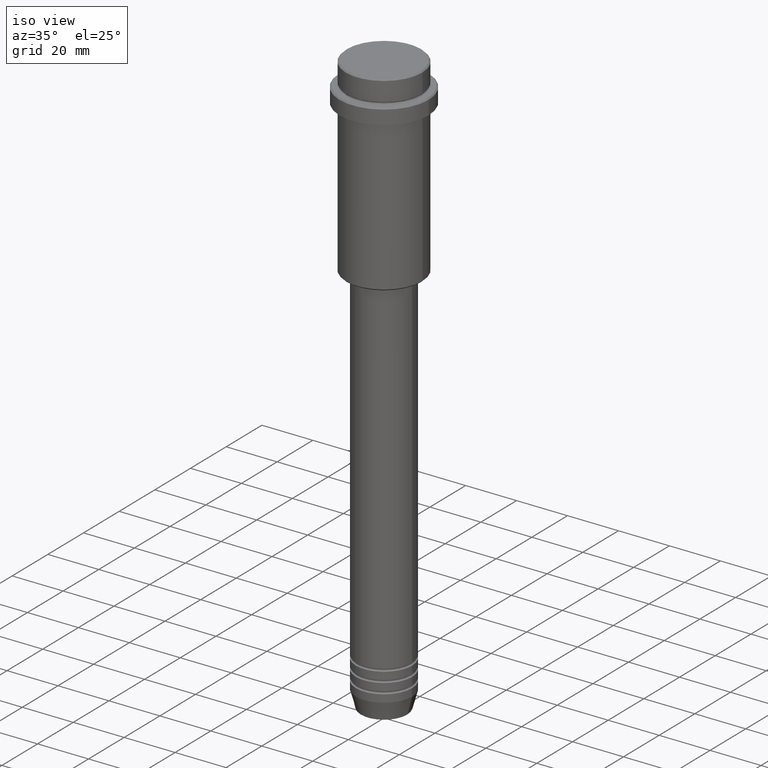
[diagram: clean part render]
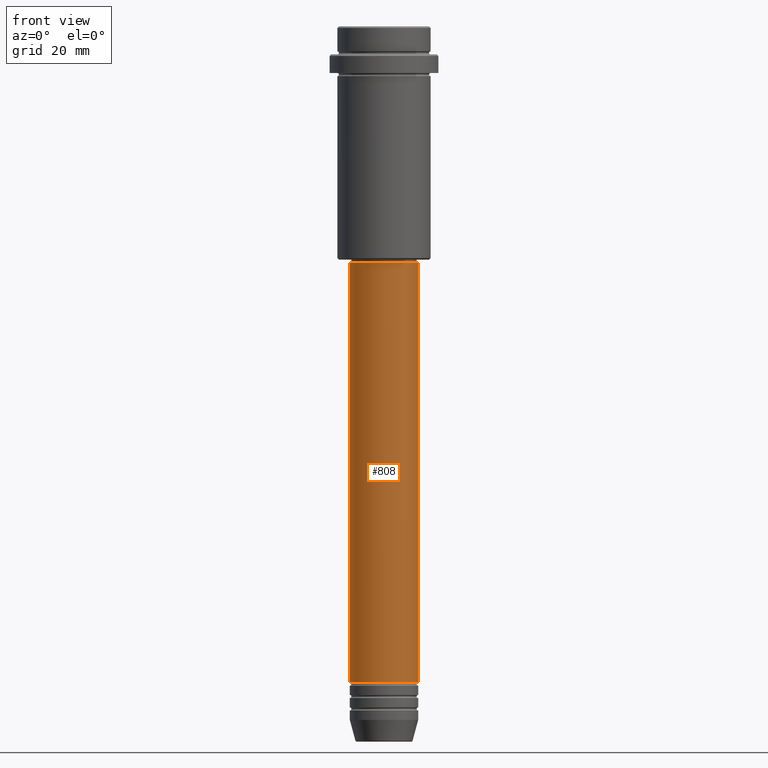
[diagram: tour spotlight — one face highlighted and labeled with its STEP entity id]
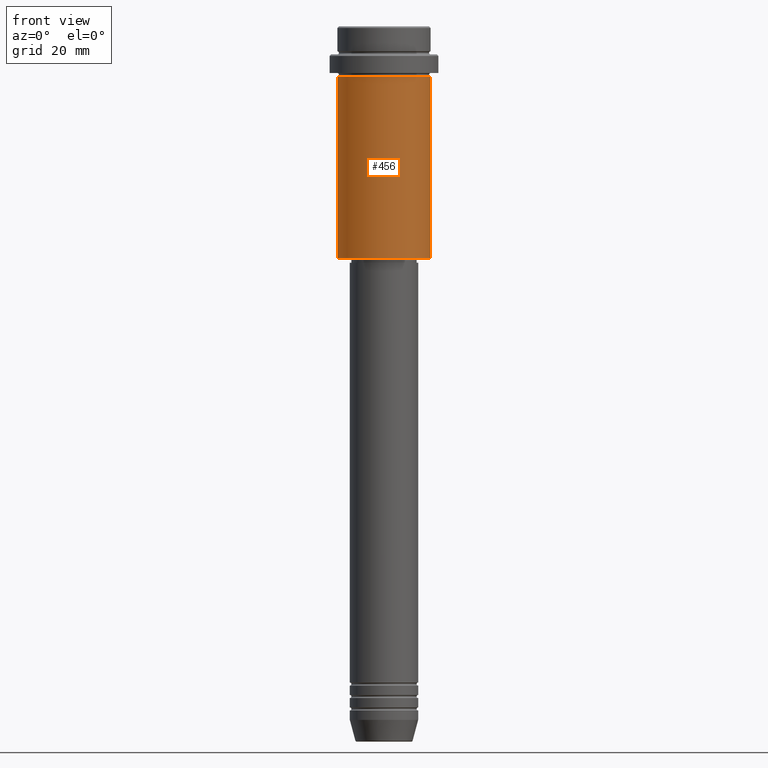
[diagram: tour spotlight — one face highlighted and labeled with its STEP entity id]
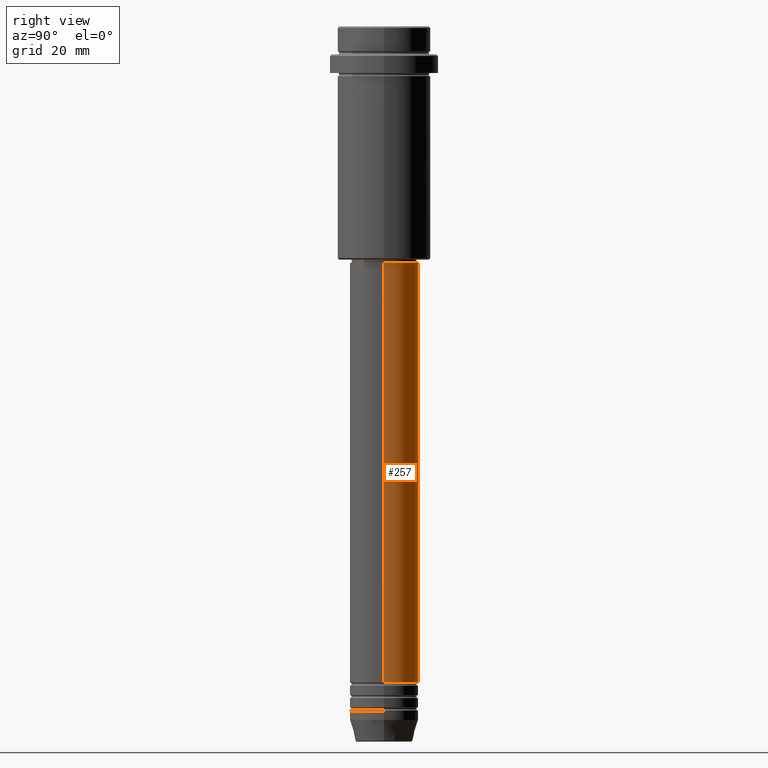
[diagram: tour spotlight — one face highlighted and labeled with its STEP entity id]
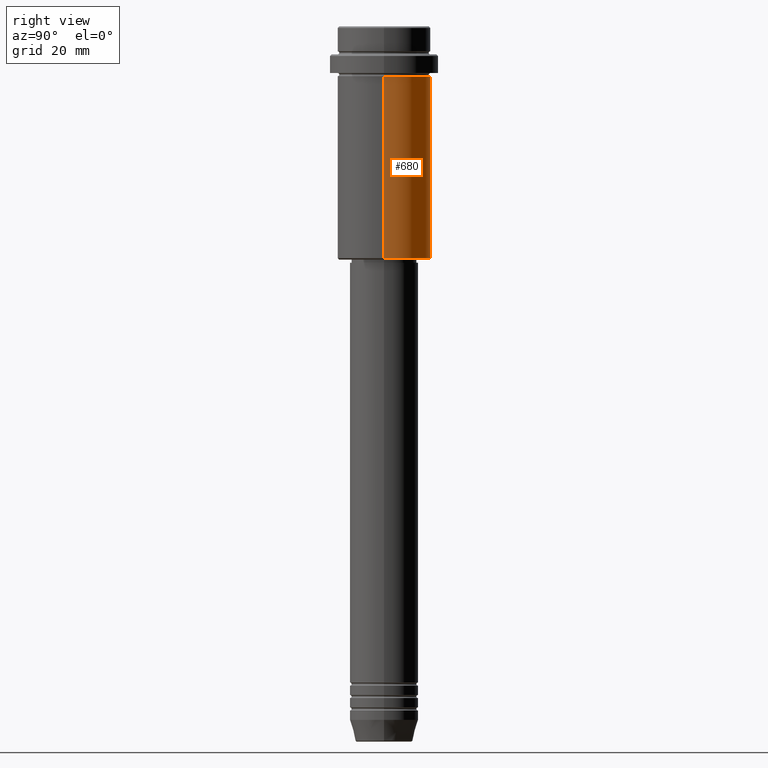
[diagram: tour spotlight — one face highlighted and labeled with its STEP entity id]
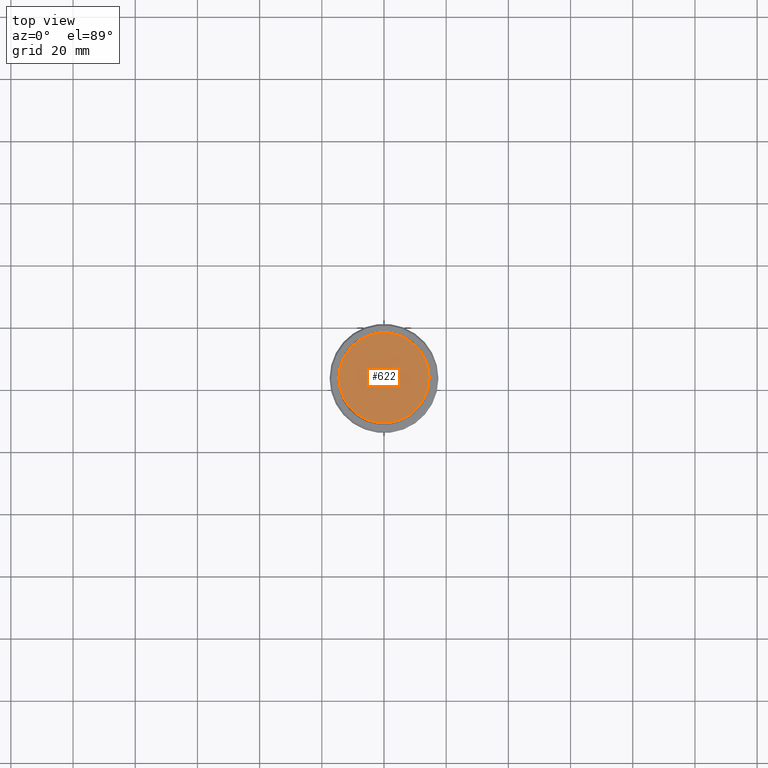
[diagram: tour spotlight — one face highlighted and labeled with its STEP entity id]
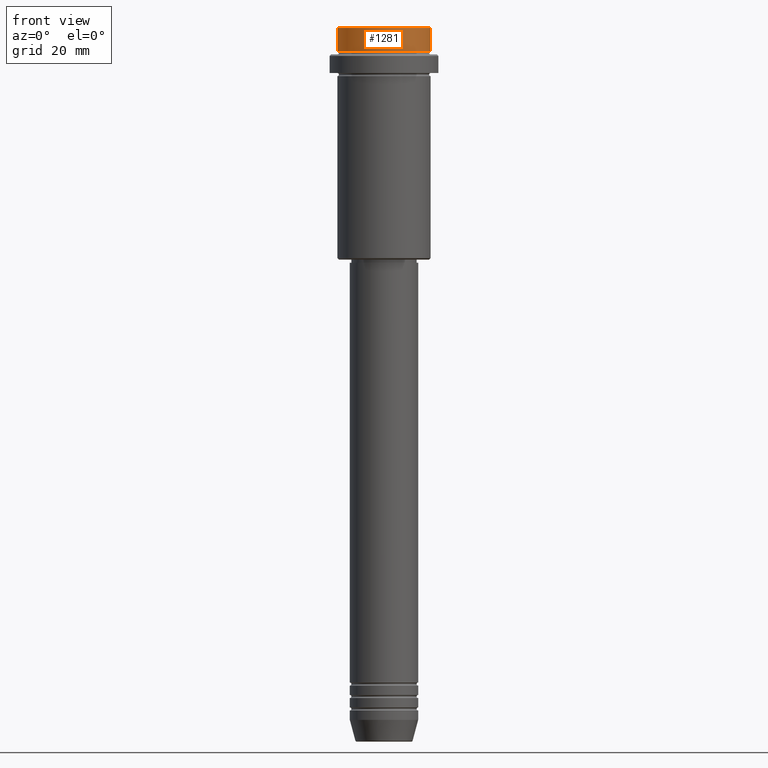
[diagram: tour spotlight — one face highlighted and labeled with its STEP entity id]
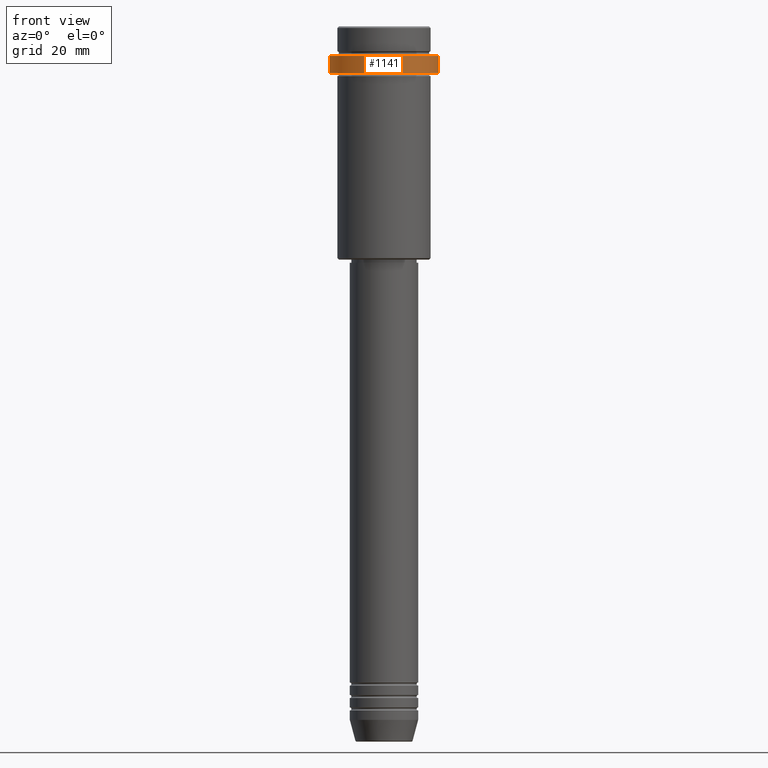
[diagram: tour spotlight — one face highlighted and labeled with its STEP entity id]
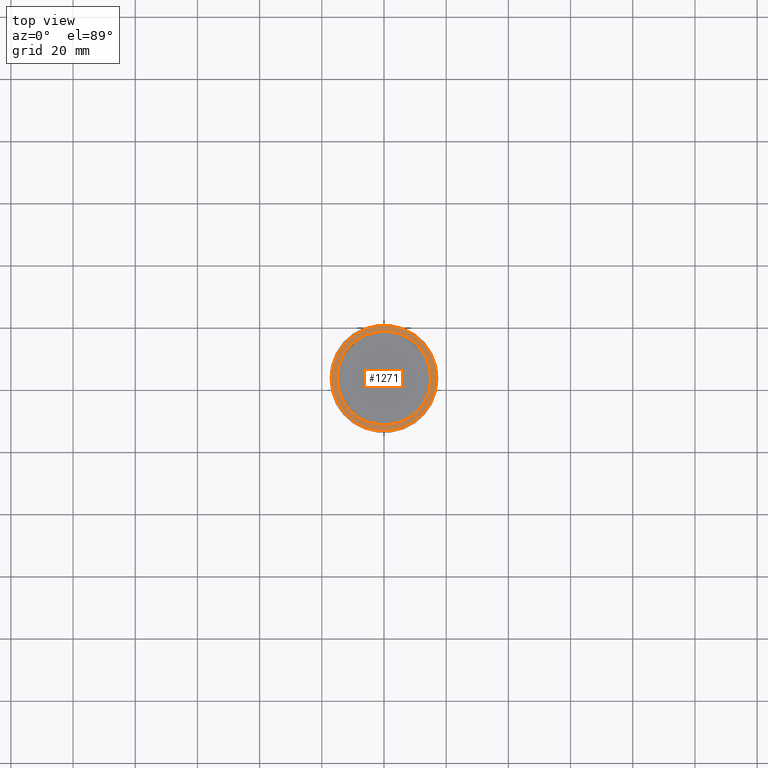
[diagram: tour spotlight — one face highlighted and labeled with its STEP entity id]
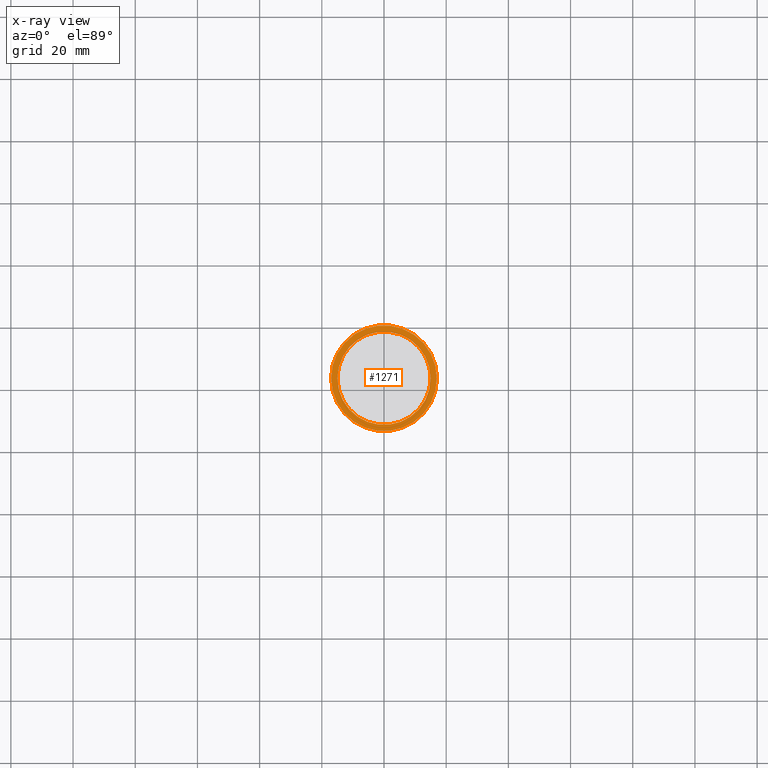
[diagram: x-ray of the same camera — body ghosted, this tour face saturated]
A machine part: a face-by-face anatomy tour. The part has 52 B-rep faces; the first image is the clean iso view, then the 8 largest visible faces are spotlighted one at a time (largest first), each with its STEP entity span.

Face 1 — front view, entity #808. In plain terms, the highlighted cylindrical surface (edge-blend (fillet) strip) has radius 11 mm, axis along (-0, -0, 1).
Definition (entity closure, byte-faithful):
#2 = CARTESIAN_POINT ( 'NONE',  ( -11.00000000000000000, 1.347111479062088405E-15, -210.9999999999998579 ) ) ;
#44 = ORIENTED_EDGE ( 'NONE', *, *, #139, .F. ) ;
#47 = EDGE_LOOP ( 'NONE', ( #44, #516, #633, #1137 ) ) ;
#139 = EDGE_CURVE ( 'NONE', #925, #989, #638, .T. ) ;
#174 = CARTESIAN_POINT ( 'NONE',  ( -11.00000000000000000, 1.347111479062088405E-15, 0.000000000000000000 ) ) ;
#183 = AXIS2_PLACEMENT_3D ( 'NONE', #425, #1255, #1156 ) ;
#214 = DIRECTION ( 'NONE',  ( 1.000000000000000000, 0.000000000000000000, 0.000000000000000000 ) ) ;
#317 = VERTEX_POINT ( 'NONE', #561 ) ;
#329 = CARTESIAN_POINT ( 'NONE',  ( 10.99999999999999822, 0.000000000000000000, -75.99999999999998579 ) ) ;
#425 = CARTESIAN_POINT ( 'NONE',  ( 0.000000000000000000, 0.000000000000000000, 0.000000000000000000 ) ) ;
#442 = VECTOR ( 'NONE', #874, 1000.000000000000000 ) ;
#446 = CIRCLE ( 'NONE', #723, 11.00000000000000000 ) ;
#454 = DIRECTION ( 'NONE',  ( -0.000000000000000000, -0.000000000000000000, 1.000000000000000000 ) ) ;
#461 = VERTEX_POINT ( 'NONE', #329 ) ;
#516 = ORIENTED_EDGE ( 'NONE', *, *, #584, .T. ) ;
#561 = CARTESIAN_POINT ( 'NONE',  ( 11.00000000000000000, 0.000000000000000000, -210.9999999999998579 ) ) ;
#584 = EDGE_CURVE ( 'NONE', #925, #317, #446, .T. ) ;
#592 = CIRCLE ( 'NONE', #769, 10.99999999999999822 ) ;
#633 = ORIENTED_EDGE ( 'NONE', *, *, #919, .T. ) ;
#638 = LINE ( 'NONE', #174, #442 ) ;
#642 = EDGE_CURVE ( 'NONE', #989, #461, #592, .T. ) ;
#659 = LINE ( 'NONE', #765, #1263 ) ;
#723 = AXIS2_PLACEMENT_3D ( 'NONE', #1388, #862, #1290 ) ;
#765 = CARTESIAN_POINT ( 'NONE',  ( 11.00000000000000000, 0.000000000000000000, 0.000000000000000000 ) ) ;
#769 = AXIS2_PLACEMENT_3D ( 'NONE', #1321, #454, #214 ) ;
#808 = ADVANCED_FACE ( 'NONE', ( #847 ), #1184, .T. ) ;
#847 = FACE_OUTER_BOUND ( 'NONE', #47, .T. ) ;
#862 = DIRECTION ( 'NONE',  ( -0.000000000000000000, -0.000000000000000000, 1.000000000000000000 ) ) ;
#874 = DIRECTION ( 'NONE',  ( -0.000000000000000000, -0.000000000000000000, 1.000000000000000000 ) ) ;
#919 = EDGE_CURVE ( 'NONE', #317, #461, #659, .T. ) ;
#925 = VERTEX_POINT ( 'NONE', #2 ) ;
#989 = VERTEX_POINT ( 'NONE', #1142 ) ;
#1137 = ORIENTED_EDGE ( 'NONE', *, *, #642, .F. ) ;
#1142 = CARTESIAN_POINT ( 'NONE',  ( -10.99999999999999822, 1.347111479062088207E-15, -75.99999999999998579 ) ) ;
#1156 = DIRECTION ( 'NONE',  ( 1.000000000000000000, 0.000000000000000000, 0.000000000000000000 ) ) ;
#1184 = CYLINDRICAL_SURFACE ( 'NONE', #183, 11.00000000000000000 ) ;
#1255 = DIRECTION ( 'NONE',  ( -0.000000000000000000, -0.000000000000000000, 1.000000000000000000 ) ) ;
#1263 = VECTOR ( 'NONE', #1303, 1000.000000000000000 ) ;
#1290 = DIRECTION ( 'NONE',  ( 1.000000000000000000, 0.000000000000000000, 0.000000000000000000 ) ) ;
#1303 = DIRECTION ( 'NONE',  ( -0.000000000000000000, -0.000000000000000000, 1.000000000000000000 ) ) ;
#1321 = CARTESIAN_POINT ( 'NONE',  ( 0.000000000000000000, 0.000000000000000000, -75.99999999999998579 ) ) ;
#1388 = CARTESIAN_POINT ( 'NONE',  ( 0.000000000000000000, 0.000000000000000000, -210.9999999999998579 ) ) ;

Face 2 — front view, entity #456. In plain terms, the highlighted cylindrical surface (partial cylindrical patch) has radius 15 mm, axis along (-0, -0, 1).
Definition (entity closure, byte-faithful):
#53 = CARTESIAN_POINT ( 'NONE',  ( 15.00000000000000000, 0.000000000000000000, -74.49999999999994316 ) ) ;
#61 = VERTEX_POINT ( 'NONE', #1075 ) ;
#117 = EDGE_CURVE ( 'NONE', #61, #716, #1147, .T. ) ;
#126 = DIRECTION ( 'NONE',  ( -0.000000000000000000, -0.000000000000000000, 1.000000000000000000 ) ) ;
#164 = EDGE_CURVE ( 'NONE', #1407, #752, #1037, .T. ) ;
#279 = VECTOR ( 'NONE', #635, 1000.000000000000000 ) ;
#307 = DIRECTION ( 'NONE',  ( 1.000000000000000000, 0.000000000000000000, 0.000000000000000000 ) ) ;
#340 = EDGE_LOOP ( 'NONE', ( #957, #1215, #625, #996 ) ) ;
#408 = CARTESIAN_POINT ( 'NONE',  ( 15.00000000000000178, 0.000000000000000000, -16.00000000000000000 ) ) ;
#418 = CYLINDRICAL_SURFACE ( 'NONE', #1288, 15.00000000000000000 ) ;
#437 = CARTESIAN_POINT ( 'NONE',  ( 0.000000000000000000, 0.000000000000000000, 0.000000000000000000 ) ) ;
#456 = ADVANCED_FACE ( 'NONE', ( #970 ), #418, .T. ) ;
#528 = DIRECTION ( 'NONE',  ( 1.000000000000000000, 0.000000000000000000, 0.000000000000000000 ) ) ;
#555 = DIRECTION ( 'NONE',  ( -0.000000000000000000, -0.000000000000000000, 1.000000000000000000 ) ) ;
#625 = ORIENTED_EDGE ( 'NONE', *, *, #1389, .T. ) ;
#629 = DIRECTION ( 'NONE',  ( -0.000000000000000000, -0.000000000000000000, 1.000000000000000000 ) ) ;
#635 = DIRECTION ( 'NONE',  ( -0.000000000000000000, -0.000000000000000000, 1.000000000000000000 ) ) ;
#678 = VECTOR ( 'NONE', #757, 1000.000000000000000 ) ;
#716 = VERTEX_POINT ( 'NONE', #53 ) ;
#737 = LINE ( 'NONE', #838, #279 ) ;
#752 = VERTEX_POINT ( 'NONE', #408 ) ;
#757 = DIRECTION ( 'NONE',  ( -0.000000000000000000, -0.000000000000000000, 1.000000000000000000 ) ) ;
#788 = AXIS2_PLACEMENT_3D ( 'NONE', #802, #126, #912 ) ;
#802 = CARTESIAN_POINT ( 'NONE',  ( 0.000000000000000000, 0.000000000000000000, -74.49999999999994316 ) ) ;
#826 = EDGE_CURVE ( 'NONE', #61, #1407, #737, .T. ) ;
#837 = AXIS2_PLACEMENT_3D ( 'NONE', #1191, #629, #307 ) ;
#838 = CARTESIAN_POINT ( 'NONE',  ( -15.00000000000000000, 1.836970198721029589E-15, 0.000000000000000000 ) ) ;
#897 = CARTESIAN_POINT ( 'NONE',  ( 15.00000000000000000, 0.000000000000000000, 0.000000000000000000 ) ) ;
#912 = DIRECTION ( 'NONE',  ( -1.000000000000000000, 0.000000000000000000, 0.000000000000000000 ) ) ;
#957 = ORIENTED_EDGE ( 'NONE', *, *, #826, .F. ) ;
#970 = FACE_OUTER_BOUND ( 'NONE', #340, .T. ) ;
#996 = ORIENTED_EDGE ( 'NONE', *, *, #164, .F. ) ;
#1037 = CIRCLE ( 'NONE', #837, 15.00000000000000178 ) ;
#1075 = CARTESIAN_POINT ( 'NONE',  ( -15.00000000000000000, 1.836970198721029589E-15, -74.49999999999994316 ) ) ;
#1147 = CIRCLE ( 'NONE', #788, 15.00000000000000000 ) ;
#1191 = CARTESIAN_POINT ( 'NONE',  ( 0.000000000000000000, 0.000000000000000000, -16.00000000000000000 ) ) ;
#1215 = ORIENTED_EDGE ( 'NONE', *, *, #117, .T. ) ;
#1288 = AXIS2_PLACEMENT_3D ( 'NONE', #437, #555, #528 ) ;
#1304 = CARTESIAN_POINT ( 'NONE',  ( -15.00000000000000355, 1.836970198721029983E-15, -16.00000000000000000 ) ) ;
#1389 = EDGE_CURVE ( 'NONE', #716, #752, #1401, .T. ) ;
#1401 = LINE ( 'NONE', #897, #678 ) ;
#1407 = VERTEX_POINT ( 'NONE', #1304 ) ;

Face 3 — right view, entity #257. In plain terms, the highlighted cylindrical surface (edge-blend (fillet) strip) has radius 11 mm, axis along (-0, -0, 1).
Definition (entity closure, byte-faithful):
#2 = CARTESIAN_POINT ( 'NONE',  ( -11.00000000000000000, 1.347111479062088405E-15, -210.9999999999998579 ) ) ;
#57 = EDGE_CURVE ( 'NONE', #461, #989, #465, .T. ) ;
#68 = EDGE_CURVE ( 'NONE', #317, #925, #745, .T. ) ;
#71 = CARTESIAN_POINT ( 'NONE',  ( 0.000000000000000000, 0.000000000000000000, -210.9999999999998579 ) ) ;
#139 = EDGE_CURVE ( 'NONE', #925, #989, #638, .T. ) ;
#174 = CARTESIAN_POINT ( 'NONE',  ( -11.00000000000000000, 1.347111479062088405E-15, 0.000000000000000000 ) ) ;
#180 = AXIS2_PLACEMENT_3D ( 'NONE', #1201, #210, #335 ) ;
#210 = DIRECTION ( 'NONE',  ( -0.000000000000000000, -0.000000000000000000, 1.000000000000000000 ) ) ;
#257 = ADVANCED_FACE ( 'NONE', ( #1299 ), #319, .T. ) ;
#317 = VERTEX_POINT ( 'NONE', #561 ) ;
#319 = CYLINDRICAL_SURFACE ( 'NONE', #180, 11.00000000000000000 ) ;
#329 = CARTESIAN_POINT ( 'NONE',  ( 10.99999999999999822, 0.000000000000000000, -75.99999999999998579 ) ) ;
#335 = DIRECTION ( 'NONE',  ( 1.000000000000000000, 0.000000000000000000, 0.000000000000000000 ) ) ;
#416 = AXIS2_PLACEMENT_3D ( 'NONE', #1272, #1403, #433 ) ;
#433 = DIRECTION ( 'NONE',  ( 1.000000000000000000, 0.000000000000000000, 0.000000000000000000 ) ) ;
#442 = VECTOR ( 'NONE', #874, 1000.000000000000000 ) ;
#461 = VERTEX_POINT ( 'NONE', #329 ) ;
#465 = CIRCLE ( 'NONE', #416, 10.99999999999999822 ) ;
#508 = EDGE_LOOP ( 'NONE', ( #1256, #610, #1040, #639 ) ) ;
#532 = DIRECTION ( 'NONE',  ( 1.000000000000000000, 0.000000000000000000, 0.000000000000000000 ) ) ;
#561 = CARTESIAN_POINT ( 'NONE',  ( 11.00000000000000000, 0.000000000000000000, -210.9999999999998579 ) ) ;
#610 = ORIENTED_EDGE ( 'NONE', *, *, #139, .T. ) ;
#638 = LINE ( 'NONE', #174, #442 ) ;
#639 = ORIENTED_EDGE ( 'NONE', *, *, #919, .F. ) ;
#646 = DIRECTION ( 'NONE',  ( -0.000000000000000000, -0.000000000000000000, 1.000000000000000000 ) ) ;
#659 = LINE ( 'NONE', #765, #1263 ) ;
#745 = CIRCLE ( 'NONE', #810, 11.00000000000000000 ) ;
#765 = CARTESIAN_POINT ( 'NONE',  ( 11.00000000000000000, 0.000000000000000000, 0.000000000000000000 ) ) ;
#810 = AXIS2_PLACEMENT_3D ( 'NONE', #71, #646, #532 ) ;
#874 = DIRECTION ( 'NONE',  ( -0.000000000000000000, -0.000000000000000000, 1.000000000000000000 ) ) ;
#919 = EDGE_CURVE ( 'NONE', #317, #461, #659, .T. ) ;
#925 = VERTEX_POINT ( 'NONE', #2 ) ;
#989 = VERTEX_POINT ( 'NONE', #1142 ) ;
#1040 = ORIENTED_EDGE ( 'NONE', *, *, #57, .F. ) ;
#1142 = CARTESIAN_POINT ( 'NONE',  ( -10.99999999999999822, 1.347111479062088207E-15, -75.99999999999998579 ) ) ;
#1201 = CARTESIAN_POINT ( 'NONE',  ( 0.000000000000000000, 0.000000000000000000, 0.000000000000000000 ) ) ;
#1256 = ORIENTED_EDGE ( 'NONE', *, *, #68, .T. ) ;
#1263 = VECTOR ( 'NONE', #1303, 1000.000000000000000 ) ;
#1272 = CARTESIAN_POINT ( 'NONE',  ( 0.000000000000000000, 0.000000000000000000, -75.99999999999998579 ) ) ;
#1299 = FACE_OUTER_BOUND ( 'NONE', #508, .T. ) ;
#1303 = DIRECTION ( 'NONE',  ( -0.000000000000000000, -0.000000000000000000, 1.000000000000000000 ) ) ;
#1403 = DIRECTION ( 'NONE',  ( -0.000000000000000000, -0.000000000000000000, 1.000000000000000000 ) ) ;

Face 4 — right view, entity #680. In plain terms, the highlighted cylindrical surface (partial cylindrical patch) has radius 15 mm, axis along (-0, -0, 1).
Definition (entity closure, byte-faithful):
#17 = AXIS2_PLACEMENT_3D ( 'NONE', #559, #609, #894 ) ;
#32 = CIRCLE ( 'NONE', #1368, 15.00000000000000000 ) ;
#53 = CARTESIAN_POINT ( 'NONE',  ( 15.00000000000000000, 0.000000000000000000, -74.49999999999994316 ) ) ;
#61 = VERTEX_POINT ( 'NONE', #1075 ) ;
#112 = CIRCLE ( 'NONE', #156, 15.00000000000000178 ) ;
#122 = EDGE_CURVE ( 'NONE', #716, #61, #32, .T. ) ;
#156 = AXIS2_PLACEMENT_3D ( 'NONE', #687, #250, #1017 ) ;
#217 = CYLINDRICAL_SURFACE ( 'NONE', #17, 15.00000000000000000 ) ;
#241 = ORIENTED_EDGE ( 'NONE', *, *, #554, .F. ) ;
#250 = DIRECTION ( 'NONE',  ( -0.000000000000000000, -0.000000000000000000, 1.000000000000000000 ) ) ;
#279 = VECTOR ( 'NONE', #635, 1000.000000000000000 ) ;
#408 = CARTESIAN_POINT ( 'NONE',  ( 15.00000000000000178, 0.000000000000000000, -16.00000000000000000 ) ) ;
#421 = FACE_OUTER_BOUND ( 'NONE', #830, .T. ) ;
#427 = DIRECTION ( 'NONE',  ( -0.000000000000000000, -0.000000000000000000, 1.000000000000000000 ) ) ;
#554 = EDGE_CURVE ( 'NONE', #752, #1407, #112, .T. ) ;
#557 = ORIENTED_EDGE ( 'NONE', *, *, #826, .T. ) ;
#559 = CARTESIAN_POINT ( 'NONE',  ( 0.000000000000000000, 0.000000000000000000, 0.000000000000000000 ) ) ;
#589 = CARTESIAN_POINT ( 'NONE',  ( 0.000000000000000000, 0.000000000000000000, -74.49999999999994316 ) ) ;
#609 = DIRECTION ( 'NONE',  ( -0.000000000000000000, -0.000000000000000000, 1.000000000000000000 ) ) ;
#635 = DIRECTION ( 'NONE',  ( -0.000000000000000000, -0.000000000000000000, 1.000000000000000000 ) ) ;
#678 = VECTOR ( 'NONE', #757, 1000.000000000000000 ) ;
#680 = ADVANCED_FACE ( 'NONE', ( #421 ), #217, .T. ) ;
#687 = CARTESIAN_POINT ( 'NONE',  ( 0.000000000000000000, 0.000000000000000000, -16.00000000000000000 ) ) ;
#716 = VERTEX_POINT ( 'NONE', #53 ) ;
#737 = LINE ( 'NONE', #838, #279 ) ;
#752 = VERTEX_POINT ( 'NONE', #408 ) ;
#757 = DIRECTION ( 'NONE',  ( -0.000000000000000000, -0.000000000000000000, 1.000000000000000000 ) ) ;
#826 = EDGE_CURVE ( 'NONE', #61, #1407, #737, .T. ) ;
#830 = EDGE_LOOP ( 'NONE', ( #983, #557, #241, #1062 ) ) ;
#838 = CARTESIAN_POINT ( 'NONE',  ( -15.00000000000000000, 1.836970198721029589E-15, 0.000000000000000000 ) ) ;
#894 = DIRECTION ( 'NONE',  ( 1.000000000000000000, 0.000000000000000000, 0.000000000000000000 ) ) ;
#897 = CARTESIAN_POINT ( 'NONE',  ( 15.00000000000000000, 0.000000000000000000, 0.000000000000000000 ) ) ;
#983 = ORIENTED_EDGE ( 'NONE', *, *, #122, .T. ) ;
#1017 = DIRECTION ( 'NONE',  ( 1.000000000000000000, 0.000000000000000000, 0.000000000000000000 ) ) ;
#1062 = ORIENTED_EDGE ( 'NONE', *, *, #1389, .F. ) ;
#1075 = CARTESIAN_POINT ( 'NONE',  ( -15.00000000000000000, 1.836970198721029589E-15, -74.49999999999994316 ) ) ;
#1084 = DIRECTION ( 'NONE',  ( -1.000000000000000000, 0.000000000000000000, 0.000000000000000000 ) ) ;
#1304 = CARTESIAN_POINT ( 'NONE',  ( -15.00000000000000355, 1.836970198721029983E-15, -16.00000000000000000 ) ) ;
#1368 = AXIS2_PLACEMENT_3D ( 'NONE', #589, #427, #1084 ) ;
#1389 = EDGE_CURVE ( 'NONE', #716, #752, #1401, .T. ) ;
#1401 = LINE ( 'NONE', #897, #678 ) ;
#1407 = VERTEX_POINT ( 'NONE', #1304 ) ;

Face 5 — top view, entity #622. In plain terms, the highlighted planar face has unit normal (0, -0, 1).
Definition (entity closure, byte-faithful):
#116 = CARTESIAN_POINT ( 'NONE',  ( 0.000000000000000000, 0.000000000000000000, 0.000000000000000000 ) ) ;
#243 = ORIENTED_EDGE ( 'NONE', *, *, #1015, .T. ) ;
#273 = ORIENTED_EDGE ( 'NONE', *, *, #334, .T. ) ;
#320 = CARTESIAN_POINT ( 'NONE',  ( 14.50000000000001066, 1.806354028742346591E-15, 0.000000000000000000 ) ) ;
#334 = EDGE_CURVE ( 'NONE', #892, #1274, #517, .T. ) ;
#352 = CARTESIAN_POINT ( 'NONE',  ( 0.000000000000000000, 0.000000000000000000, 0.000000000000000000 ) ) ;
#356 = DIRECTION ( 'NONE',  ( -0.000000000000000000, -0.000000000000000000, 1.000000000000000000 ) ) ;
#422 = EDGE_LOOP ( 'NONE', ( #273, #243 ) ) ;
#468 = DIRECTION ( 'NONE',  ( 0.000000000000000000, -0.000000000000000000, 1.000000000000000000 ) ) ;
#517 = CIRCLE ( 'NONE', #1311, 14.50000000000001066 ) ;
#568 = PLANE ( 'NONE',  #1370 ) ;
#585 = DIRECTION ( 'NONE',  ( 1.000000000000000000, 0.000000000000000000, 0.000000000000000000 ) ) ;
#622 = ADVANCED_FACE ( 'NONE', ( #1108 ), #568, .T. ) ;
#694 = DIRECTION ( 'NONE',  ( 1.000000000000000000, 0.000000000000000000, 0.000000000000000000 ) ) ;
#798 = DIRECTION ( 'NONE',  ( -0.000000000000000000, -0.000000000000000000, 1.000000000000000000 ) ) ;
#892 = VERTEX_POINT ( 'NONE', #984 ) ;
#922 = DIRECTION ( 'NONE',  ( 1.000000000000000000, 0.000000000000000000, 0.000000000000000000 ) ) ;
#984 = CARTESIAN_POINT ( 'NONE',  ( -14.50000000000001066, 0.000000000000000000, 0.000000000000000000 ) ) ;
#1001 = AXIS2_PLACEMENT_3D ( 'NONE', #352, #356, #922 ) ;
#1014 = CARTESIAN_POINT ( 'NONE',  ( 0.000000000000000000, 0.000000000000000000, 0.000000000000000000 ) ) ;
#1015 = EDGE_CURVE ( 'NONE', #1274, #892, #1222, .T. ) ;
#1108 = FACE_OUTER_BOUND ( 'NONE', #422, .T. ) ;
#1222 = CIRCLE ( 'NONE', #1001, 14.50000000000001066 ) ;
#1274 = VERTEX_POINT ( 'NONE', #320 ) ;
#1311 = AXIS2_PLACEMENT_3D ( 'NONE', #116, #798, #585 ) ;
#1370 = AXIS2_PLACEMENT_3D ( 'NONE', #1014, #468, #694 ) ;

Face 6 — front view, entity #1281. In plain terms, the highlighted cylindrical surface (partial cylindrical patch) has radius 15 mm, axis along (-0, -0, 1).
Definition (entity closure, byte-faithful):
#35 = AXIS2_PLACEMENT_3D ( 'NONE', #507, #854, #188 ) ;
#63 = AXIS2_PLACEMENT_3D ( 'NONE', #771, #674, #220 ) ;
#188 = DIRECTION ( 'NONE',  ( 1.000000000000000000, 0.000000000000000000, 0.000000000000000000 ) ) ;
#189 = EDGE_CURVE ( 'NONE', #605, #1134, #1275, .T. ) ;
#208 = CIRCLE ( 'NONE', #63, 15.00000000000000000 ) ;
#220 = DIRECTION ( 'NONE',  ( 1.000000000000000000, 0.000000000000000000, 0.000000000000000000 ) ) ;
#253 = VERTEX_POINT ( 'NONE', #545 ) ;
#258 = CIRCLE ( 'NONE', #35, 15.00000000000000000 ) ;
#267 = DIRECTION ( 'NONE',  ( -0.000000000000000000, -0.000000000000000000, 1.000000000000000000 ) ) ;
#346 = ORIENTED_EDGE ( 'NONE', *, *, #1090, .F. ) ;
#498 = VECTOR ( 'NONE', #267, 1000.000000000000000 ) ;
#500 = ORIENTED_EDGE ( 'NONE', *, *, #718, .T. ) ;
#501 = EDGE_LOOP ( 'NONE', ( #346, #724, #836, #500 ) ) ;
#507 = CARTESIAN_POINT ( 'NONE',  ( 0.000000000000000000, 0.000000000000000000, -0.4999999999999831246 ) ) ;
#526 = CARTESIAN_POINT ( 'NONE',  ( 15.00000000000000000, 0.000000000000000000, 0.000000000000000000 ) ) ;
#534 = CARTESIAN_POINT ( 'NONE',  ( 0.000000000000000000, 0.000000000000000000, 0.000000000000000000 ) ) ;
#545 = CARTESIAN_POINT ( 'NONE',  ( -15.00000000000000000, 1.836970198721029589E-15, -0.4999999999999831246 ) ) ;
#596 = LINE ( 'NONE', #1244, #498 ) ;
#605 = VERTEX_POINT ( 'NONE', #754 ) ;
#674 = DIRECTION ( 'NONE',  ( -0.000000000000000000, -0.000000000000000000, 1.000000000000000000 ) ) ;
#718 = EDGE_CURVE ( 'NONE', #1134, #253, #258, .T. ) ;
#724 = ORIENTED_EDGE ( 'NONE', *, *, #1283, .T. ) ;
#754 = CARTESIAN_POINT ( 'NONE',  ( 15.00000000000000000, 0.000000000000000000, -7.999999999999998224 ) ) ;
#771 = CARTESIAN_POINT ( 'NONE',  ( 0.000000000000000000, 0.000000000000000000, -7.999999999999998224 ) ) ;
#777 = DIRECTION ( 'NONE',  ( -0.000000000000000000, -0.000000000000000000, 1.000000000000000000 ) ) ;
#836 = ORIENTED_EDGE ( 'NONE', *, *, #189, .T. ) ;
#854 = DIRECTION ( 'NONE',  ( 0.000000000000000000, 0.000000000000000000, -1.000000000000000000 ) ) ;
#877 = DIRECTION ( 'NONE',  ( 1.000000000000000000, 0.000000000000000000, 0.000000000000000000 ) ) ;
#951 = CARTESIAN_POINT ( 'NONE',  ( -15.00000000000000000, 1.836970198721029589E-15, -7.999999999999998224 ) ) ;
#971 = FACE_OUTER_BOUND ( 'NONE', #501, .T. ) ;
#998 = VECTOR ( 'NONE', #1185, 1000.000000000000000 ) ;
#1085 = CYLINDRICAL_SURFACE ( 'NONE', #1179, 15.00000000000000000 ) ;
#1090 = EDGE_CURVE ( 'NONE', #1221, #253, #596, .T. ) ;
#1134 = VERTEX_POINT ( 'NONE', #1269 ) ;
#1179 = AXIS2_PLACEMENT_3D ( 'NONE', #534, #777, #877 ) ;
#1185 = DIRECTION ( 'NONE',  ( -0.000000000000000000, -0.000000000000000000, 1.000000000000000000 ) ) ;
#1221 = VERTEX_POINT ( 'NONE', #951 ) ;
#1244 = CARTESIAN_POINT ( 'NONE',  ( -15.00000000000000000, 1.836970198721029589E-15, 0.000000000000000000 ) ) ;
#1269 = CARTESIAN_POINT ( 'NONE',  ( 15.00000000000000000, 0.000000000000000000, -0.4999999999999831246 ) ) ;
#1275 = LINE ( 'NONE', #526, #998 ) ;
#1281 = ADVANCED_FACE ( 'NONE', ( #971 ), #1085, .T. ) ;
#1283 = EDGE_CURVE ( 'NONE', #1221, #605, #208, .T. ) ;

Face 7 — front view, entity #1141. In plain terms, the highlighted cylindrical surface (partial cylindrical patch) has radius 17.5 mm, axis along (-0, -0, 1).
Definition (entity closure, byte-faithful):
#25 = ORIENTED_EDGE ( 'NONE', *, *, #219, .T. ) ;
#45 = CARTESIAN_POINT ( 'NONE',  ( 17.50000000000000000, 0.000000000000000000, -9.499999999999971578 ) ) ;
#91 = AXIS2_PLACEMENT_3D ( 'NONE', #713, #807, #467 ) ;
#94 = VERTEX_POINT ( 'NONE', #412 ) ;
#191 = FACE_OUTER_BOUND ( 'NONE', #657, .T. ) ;
#200 = LINE ( 'NONE', #1318, #1063 ) ;
#219 = EDGE_CURVE ( 'NONE', #94, #1145, #1229, .T. ) ;
#247 = CARTESIAN_POINT ( 'NONE',  ( 17.50000000000000000, 0.000000000000000000, 0.000000000000000000 ) ) ;
#264 = ORIENTED_EDGE ( 'NONE', *, *, #579, .F. ) ;
#288 = DIRECTION ( 'NONE',  ( 1.000000000000000000, 0.000000000000000000, 0.000000000000000000 ) ) ;
#295 = CARTESIAN_POINT ( 'NONE',  ( -17.50000000000000000, 2.143131898507868248E-15, -9.499999999999971578 ) ) ;
#412 = CARTESIAN_POINT ( 'NONE',  ( 17.50000000000000000, 0.000000000000000000, -15.00000000000000000 ) ) ;
#467 = DIRECTION ( 'NONE',  ( 1.000000000000000000, 0.000000000000000000, 0.000000000000000000 ) ) ;
#491 = ORIENTED_EDGE ( 'NONE', *, *, #1355, .T. ) ;
#579 = EDGE_CURVE ( 'NONE', #1122, #766, #200, .T. ) ;
#644 = DIRECTION ( 'NONE',  ( -0.000000000000000000, -0.000000000000000000, 1.000000000000000000 ) ) ;
#657 = EDGE_LOOP ( 'NONE', ( #264, #491, #25, #1385 ) ) ;
#713 = CARTESIAN_POINT ( 'NONE',  ( 0.000000000000000000, 0.000000000000000000, -9.499999999999971578 ) ) ;
#726 = CIRCLE ( 'NONE', #91, 17.50000000000000000 ) ;
#766 = VERTEX_POINT ( 'NONE', #295 ) ;
#807 = DIRECTION ( 'NONE',  ( 0.000000000000000000, 0.000000000000000000, -1.000000000000000000 ) ) ;
#965 = CYLINDRICAL_SURFACE ( 'NONE', #1069, 17.50000000000000000 ) ;
#1003 = AXIS2_PLACEMENT_3D ( 'NONE', #1203, #1105, #1208 ) ;
#1033 = EDGE_CURVE ( 'NONE', #1145, #766, #726, .T. ) ;
#1063 = VECTOR ( 'NONE', #1098, 1000.000000000000000 ) ;
#1069 = AXIS2_PLACEMENT_3D ( 'NONE', #1384, #644, #288 ) ;
#1098 = DIRECTION ( 'NONE',  ( -0.000000000000000000, -0.000000000000000000, 1.000000000000000000 ) ) ;
#1105 = DIRECTION ( 'NONE',  ( -0.000000000000000000, -0.000000000000000000, 1.000000000000000000 ) ) ;
#1122 = VERTEX_POINT ( 'NONE', #1124 ) ;
#1124 = CARTESIAN_POINT ( 'NONE',  ( -17.50000000000000000, 2.143131898507868248E-15, -15.00000000000000000 ) ) ;
#1141 = ADVANCED_FACE ( 'NONE', ( #191 ), #965, .T. ) ;
#1145 = VERTEX_POINT ( 'NONE', #45 ) ;
#1172 = VECTOR ( 'NONE', #1248, 1000.000000000000000 ) ;
#1203 = CARTESIAN_POINT ( 'NONE',  ( 0.000000000000000000, 0.000000000000000000, -15.00000000000000000 ) ) ;
#1208 = DIRECTION ( 'NONE',  ( 1.000000000000000000, 0.000000000000000000, 0.000000000000000000 ) ) ;
#1229 = LINE ( 'NONE', #247, #1172 ) ;
#1248 = DIRECTION ( 'NONE',  ( -0.000000000000000000, -0.000000000000000000, 1.000000000000000000 ) ) ;
#1286 = CIRCLE ( 'NONE', #1003, 17.50000000000000000 ) ;
#1318 = CARTESIAN_POINT ( 'NONE',  ( -17.50000000000000000, 2.143131898507868248E-15, 0.000000000000000000 ) ) ;
#1355 = EDGE_CURVE ( 'NONE', #1122, #94, #1286, .T. ) ;
#1384 = CARTESIAN_POINT ( 'NONE',  ( 0.000000000000000000, 0.000000000000000000, 0.000000000000000000 ) ) ;
#1385 = ORIENTED_EDGE ( 'NONE', *, *, #1033, .T. ) ;

Face 8 — top view, entity #1271. An x-ray twin of the same camera follows (body ghosted, this face saturated) — the face is partly hidden behind the body. In plain terms, the highlighted planar face has unit normal (0, -0, 1).
Definition (entity closure, byte-faithful):
#5 = CARTESIAN_POINT ( 'NONE',  ( 0.000000000000000000, 0.000000000000000000, -9.000000000000000000 ) ) ;
#46 = ORIENTED_EDGE ( 'NONE', *, *, #1242, .T. ) ;
#80 = CARTESIAN_POINT ( 'NONE',  ( -14.99999999999999289, 1.836970198721028800E-15, -9.000000000000000000 ) ) ;
#85 = CIRCLE ( 'NONE', #686, 17.00000000000001421 ) ;
#101 = DIRECTION ( 'NONE',  ( 0.000000000000000000, -0.000000000000000000, 1.000000000000000000 ) ) ;
#104 = DIRECTION ( 'NONE',  ( 1.000000000000000000, 0.000000000000000000, 0.000000000000000000 ) ) ;
#107 = DIRECTION ( 'NONE',  ( 1.000000000000000000, 0.000000000000000000, 0.000000000000000000 ) ) ;
#146 = ORIENTED_EDGE ( 'NONE', *, *, #378, .T. ) ;
#168 = DIRECTION ( 'NONE',  ( 0.000000000000000000, 0.000000000000000000, -1.000000000000000000 ) ) ;
#203 = VERTEX_POINT ( 'NONE', #80 ) ;
#232 = AXIS2_PLACEMENT_3D ( 'NONE', #711, #1220, #238 ) ;
#238 = DIRECTION ( 'NONE',  ( 1.000000000000000000, 0.000000000000000000, 0.000000000000000000 ) ) ;
#332 = ORIENTED_EDGE ( 'NONE', *, *, #367, .T. ) ;
#367 = EDGE_CURVE ( 'NONE', #616, #1034, #1414, .T. ) ;
#378 = EDGE_CURVE ( 'NONE', #457, #203, #495, .T. ) ;
#389 = ORIENTED_EDGE ( 'NONE', *, *, #1369, .T. ) ;
#420 = FACE_BOUND ( 'NONE', #1161, .T. ) ;
#457 = VERTEX_POINT ( 'NONE', #881 ) ;
#495 = CIRCLE ( 'NONE', #1346, 14.99999999999999289 ) ;
#550 = PLANE ( 'NONE',  #869 ) ;
#580 = DIRECTION ( 'NONE',  ( 0.000000000000000000, 0.000000000000000000, -1.000000000000000000 ) ) ;
#616 = VERTEX_POINT ( 'NONE', #914 ) ;
#624 = DIRECTION ( 'NONE',  ( 1.000000000000000000, 0.000000000000000000, 0.000000000000000000 ) ) ;
#656 = DIRECTION ( 'NONE',  ( 1.000000000000000000, 0.000000000000000000, 0.000000000000000000 ) ) ;
#686 = AXIS2_PLACEMENT_3D ( 'NONE', #1320, #1406, #107 ) ;
#703 = AXIS2_PLACEMENT_3D ( 'NONE', #940, #168, #624 ) ;
#711 = CARTESIAN_POINT ( 'NONE',  ( 0.000000000000000000, 0.000000000000000000, -9.000000000000000000 ) ) ;
#817 = CIRCLE ( 'NONE', #703, 14.99999999999999289 ) ;
#869 = AXIS2_PLACEMENT_3D ( 'NONE', #1095, #101, #656 ) ;
#881 = CARTESIAN_POINT ( 'NONE',  ( 14.99999999999999289, 0.000000000000000000, -9.000000000000000000 ) ) ;
#914 = CARTESIAN_POINT ( 'NONE',  ( 17.00000000000001421, 2.112515728529185250E-15, -9.000000000000000000 ) ) ;
#934 = CARTESIAN_POINT ( 'NONE',  ( -17.00000000000001421, 0.000000000000000000, -9.000000000000000000 ) ) ;
#940 = CARTESIAN_POINT ( 'NONE',  ( 0.000000000000000000, 0.000000000000000000, -9.000000000000000000 ) ) ;
#1034 = VERTEX_POINT ( 'NONE', #934 ) ;
#1046 = FACE_OUTER_BOUND ( 'NONE', #1143, .T. ) ;
#1095 = CARTESIAN_POINT ( 'NONE',  ( 0.000000000000000000, 14.49999999999999467, -9.000000000000000000 ) ) ;
#1143 = EDGE_LOOP ( 'NONE', ( #389, #332 ) ) ;
#1161 = EDGE_LOOP ( 'NONE', ( #146, #46 ) ) ;
#1220 = DIRECTION ( 'NONE',  ( -0.000000000000000000, -0.000000000000000000, 1.000000000000000000 ) ) ;
#1242 = EDGE_CURVE ( 'NONE', #203, #457, #817, .T. ) ;
#1271 = ADVANCED_FACE ( 'NONE', ( #1046, #420 ), #550, .T. ) ;
#1320 = CARTESIAN_POINT ( 'NONE',  ( 0.000000000000000000, 0.000000000000000000, -9.000000000000000000 ) ) ;
#1346 = AXIS2_PLACEMENT_3D ( 'NONE', #5, #580, #104 ) ;
#1369 = EDGE_CURVE ( 'NONE', #1034, #616, #85, .T. ) ;
#1406 = DIRECTION ( 'NONE',  ( -0.000000000000000000, -0.000000000000000000, 1.000000000000000000 ) ) ;
#1414 = CIRCLE ( 'NONE', #232, 17.00000000000001421 ) ;